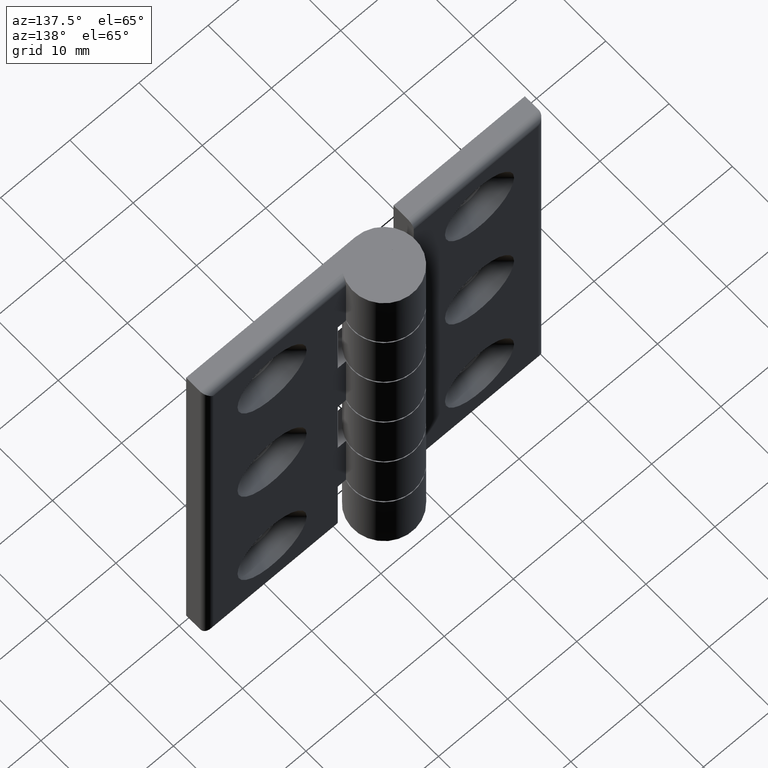
[diagram: clean part render]
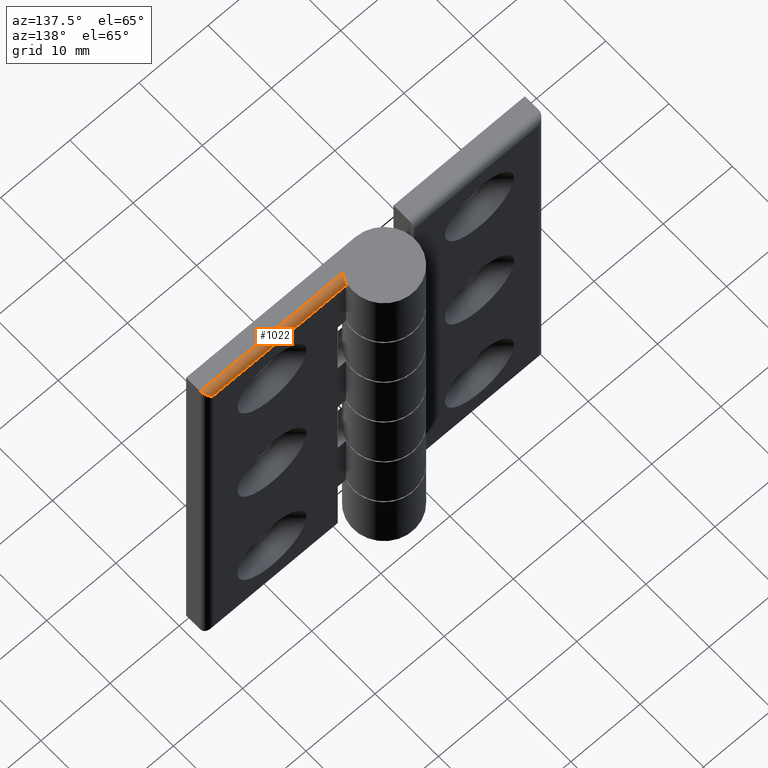
[diagram: same view with one face highlighted and labeled with its STEP entity id]
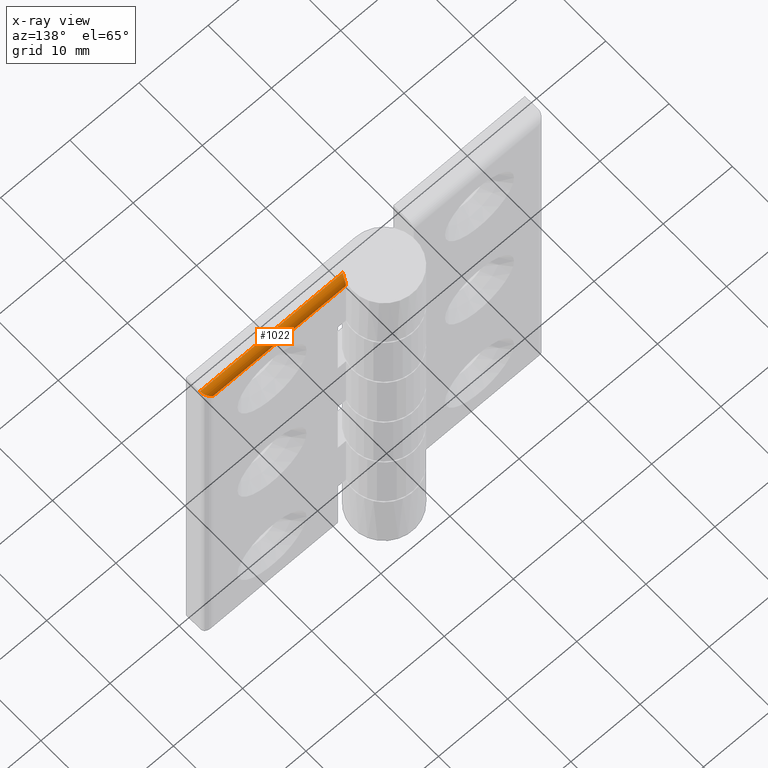
[diagram: x-ray of the same camera — body ghosted, the highlighted face saturated]
A machine part, auxiliary view. The second image highlights one B-rep face of the part: STEP entity #1022.
The next image is the same camera in x-ray: the body ghosted, the highlighted face saturated — about 0% of this face is hidden behind the body in this view.
In plain terms, the highlighted cylindrical surface (edge-blend (fillet) strip) has radius 1 mm, axis along (-1, -0, 0).
Its self-contained STEP definition (entity closure, byte-faithful):
#188=FACE_OUTER_BOUND('',#268,.T.);
#268=EDGE_LOOP('',(#843,#844,#845,#846));
#322=ELLIPSE('',#1112,1.4142135623731,1.);
#324=B_SPLINE_CURVE_WITH_KNOTS('',3,(#1649,#1650,#1651,#1652,#1653,#1654,
#1655,#1656,#1657,#1658),.UNSPECIFIED.,.F.,.F.,(4,2,2,2,4),(0.172075346206396,
0.214066809212429,0.256058272218462,0.293386765931598,0.330715259644734),
 .UNSPECIFIED.);
#368=LINE('',#1647,#446);
#369=LINE('',#1659,#447);
#446=VECTOR('',#1333,19.1918681542924);
#447=VECTOR('',#1334,20.6321840788373);
#532=VERTEX_POINT('',#1640);
#533=VERTEX_POINT('',#1642);
#534=VERTEX_POINT('',#1646);
#535=VERTEX_POINT('',#1648);
#646=EDGE_CURVE('',#532,#533,#322,.T.);
#648=EDGE_CURVE('',#532,#534,#368,.T.);
#649=EDGE_CURVE('',#534,#535,#324,.F.);
#650=EDGE_CURVE('',#535,#533,#369,.T.);
#843=ORIENTED_EDGE('',*,*,#648,.T.);
#844=ORIENTED_EDGE('',*,*,#649,.T.);
#845=ORIENTED_EDGE('',*,*,#650,.T.);
#846=ORIENTED_EDGE('',*,*,#646,.F.);
#981=CYLINDRICAL_SURFACE('',#1113,1.);
#1022=ADVANCED_FACE('',(#188),#981,.T.);
#1112=AXIS2_PLACEMENT_3D('',#1643,#1328,#1329);
#1113=AXIS2_PLACEMENT_3D('',#1645,#1331,#1332);
#1328=DIRECTION('center_axis',(0.707106781186548,0.,-0.707106781186548));
#1329=DIRECTION('ref_axis',(-0.707106781186548,0.,-0.707106781186548));
#1331=DIRECTION('center_axis',(-1.,-1.09967340925723E-16,0.));
#1332=DIRECTION('ref_axis',(0.,0.707106781186549,0.707106781186546));
#1333=DIRECTION('',(-1.,-1.09967340925723E-16,0.));
#1334=DIRECTION('',(1.,1.09967340925723E-16,0.));
#1640=CARTESIAN_POINT('',(48.,3.2,59.));
#1642=CARTESIAN_POINT('',(49.,2.2,60.));
#1643=CARTESIAN_POINT('Origin',(48.,2.2,59.));
#1645=CARTESIAN_POINT('Origin',(41.8327133071013,2.2,59.));
#1646=CARTESIAN_POINT('',(28.8081318457076,3.2,59.));
#1647=CARTESIAN_POINT('',(41.8327133071013,3.2,59.));
#1648=CARTESIAN_POINT('',(28.3678159211627,2.2,60.));
#1649=CARTESIAN_POINT('Ctrl Pts',(28.3678159211627,2.2,60.));
#1650=CARTESIAN_POINT('Ctrl Pts',(28.4393569322101,2.32030759197604,60.));
#1651=CARTESIAN_POINT('Ctrl Pts',(28.5101302673083,2.453475583969,59.9768786563379));
#1652=CARTESIAN_POINT('Ctrl Pts',(28.6290404227016,2.70544377656443,59.8735378924985));
#1653=CARTESIAN_POINT('Ctrl Pts',(28.6774607389567,2.82400694921489,59.7930672351816));
#1654=CARTESIAN_POINT('Ctrl Pts',(28.7442913128376,3.00200229717551,59.60933206106));
#1655=CARTESIAN_POINT('Ctrl Pts',(28.7691568718019,3.07627150740803,59.499296247237));
#1656=CARTESIAN_POINT('Ctrl Pts',(28.8009117252048,3.17528816349598,59.2568299228445));
#1657=CARTESIAN_POINT('Ctrl Pts',(28.8081318457076,3.2,59.1244283123771));
#1658=CARTESIAN_POINT('Ctrl Pts',(28.8081318457076,3.2,59.));
#1659=CARTESIAN_POINT('',(41.8327133071013,2.2,60.));